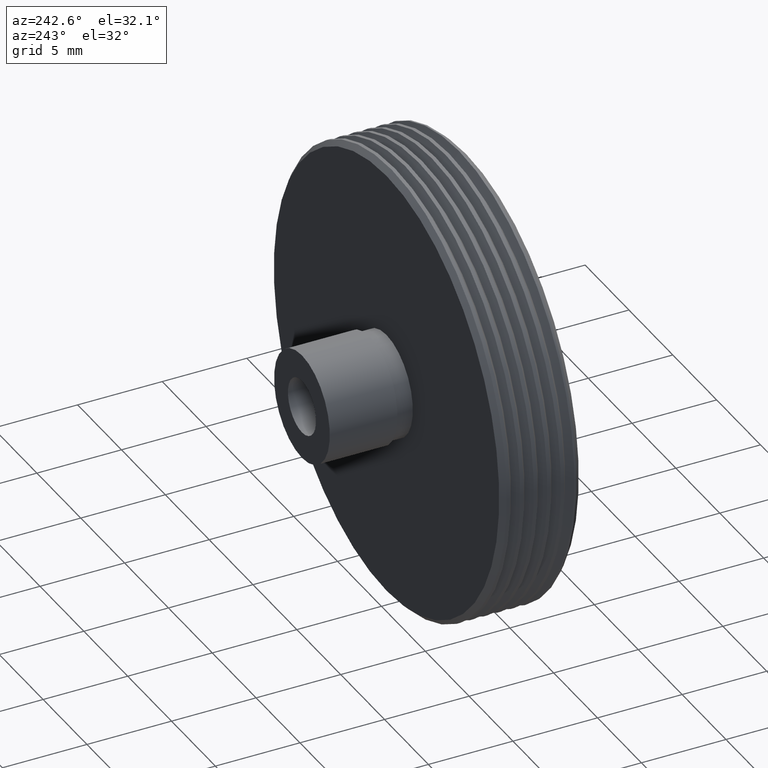
[diagram: clean part render]
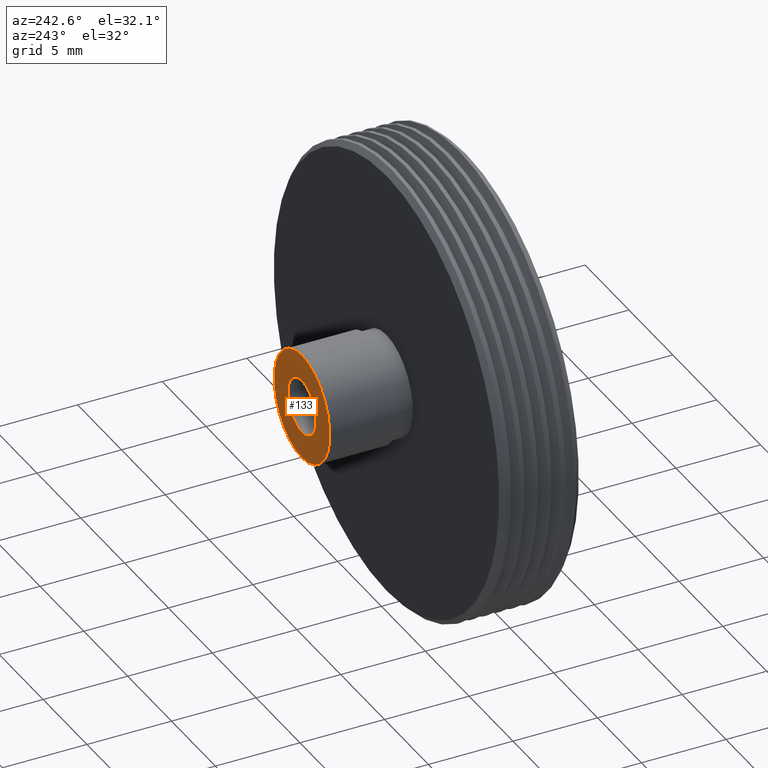
[diagram: same view with one face highlighted and labeled with its STEP entity id]
A machine part, auxiliary view. The second image highlights one B-rep face of the part: STEP entity #133.
In plain terms, the highlighted planar face has unit normal (0, -1, 0).
Its self-contained STEP definition (entity closure, byte-faithful):
#10 = VERTEX_POINT ( 'NONE', #268 ) ;
#45 = ORIENTED_EDGE ( 'NONE', *, *, #630, .T. ) ;
#83 = DIRECTION ( 'NONE',  ( 0.000000000000000000, 0.000000000000000000, -1.000000000000000000 ) ) ;
#104 = DIRECTION ( 'NONE',  ( 0.000000000000000000, 0.000000000000000000, -1.000000000000000000 ) ) ;
#124 = ORIENTED_EDGE ( 'NONE', *, *, #422, .T. ) ;
#133 = ADVANCED_FACE ( 'NONE', ( #487, #782 ), #878, .F. ) ;
#202 = DIRECTION ( 'NONE',  ( 0.000000000000000000, 0.000000000000000000, 1.000000000000000000 ) ) ;
#265 = VERTEX_POINT ( 'NONE', #1017 ) ;
#268 = CARTESIAN_POINT ( 'NONE',  ( 1.959434878635765230E-16, 9.700000000000001066, 1.600000000000000089 ) ) ;
#275 = VERTEX_POINT ( 'NONE', #600 ) ;
#305 = DIRECTION ( 'NONE',  ( 0.000000000000000000, -0.000000000000000000, -1.000000000000000000 ) ) ;
#323 = CARTESIAN_POINT ( 'NONE',  ( 0.000000000000000000, 9.700000000000001066, -1.600000000000000089 ) ) ;
#362 = DIRECTION ( 'NONE',  ( 0.000000000000000000, 0.000000000000000000, 1.000000000000000000 ) ) ;
#378 = AXIS2_PLACEMENT_3D ( 'NONE', #981, #468, #104 ) ;
#422 = EDGE_CURVE ( 'NONE', #10, #1111, #966, .T. ) ;
#460 = CARTESIAN_POINT ( 'NONE',  ( 0.000000000000000000, 9.700000000000001066, 0.000000000000000000 ) ) ;
#465 = AXIS2_PLACEMENT_3D ( 'NONE', #774, #1167, #305 ) ;
#468 = DIRECTION ( 'NONE',  ( 0.000000000000000000, -1.000000000000000000, 0.000000000000000000 ) ) ;
#475 = AXIS2_PLACEMENT_3D ( 'NONE', #1236, #646, #362 ) ;
#487 = FACE_BOUND ( 'NONE', #615, .T. ) ;
#527 = CIRCLE ( 'NONE', #1026, 3.175000000000004263 ) ;
#532 = EDGE_CURVE ( 'NONE', #1111, #10, #796, .T. ) ;
#534 = EDGE_LOOP ( 'NONE', ( #45, #748 ) ) ;
#600 = CARTESIAN_POINT ( 'NONE',  ( 3.888253587292851505E-16, 9.700000000000001066, -3.175000000000004263 ) ) ;
#615 = EDGE_LOOP ( 'NONE', ( #1001, #124 ) ) ;
#630 = EDGE_CURVE ( 'NONE', #265, #275, #527, .T. ) ;
#646 = DIRECTION ( 'NONE',  ( -0.000000000000000000, 1.000000000000000000, -0.000000000000000000 ) ) ;
#748 = ORIENTED_EDGE ( 'NONE', *, *, #825, .T. ) ;
#774 = CARTESIAN_POINT ( 'NONE',  ( 3.175000000000004263, 9.699999999999999289, 0.000000000000000000 ) ) ;
#782 = FACE_OUTER_BOUND ( 'NONE', #534, .T. ) ;
#796 = CIRCLE ( 'NONE', #378, 1.600000000000000089 ) ;
#817 = AXIS2_PLACEMENT_3D ( 'NONE', #460, #930, #83 ) ;
#825 = EDGE_CURVE ( 'NONE', #275, #265, #1250, .T. ) ;
#878 = PLANE ( 'NONE',  #465 ) ;
#884 = CARTESIAN_POINT ( 'NONE',  ( 0.000000000000000000, 9.700000000000001066, 0.000000000000000000 ) ) ;
#930 = DIRECTION ( 'NONE',  ( 0.000000000000000000, -1.000000000000000000, 0.000000000000000000 ) ) ;
#966 = CIRCLE ( 'NONE', #817, 1.600000000000000089 ) ;
#981 = CARTESIAN_POINT ( 'NONE',  ( 0.000000000000000000, 9.700000000000001066, 0.000000000000000000 ) ) ;
#1001 = ORIENTED_EDGE ( 'NONE', *, *, #532, .T. ) ;
#1017 = CARTESIAN_POINT ( 'NONE',  ( 0.000000000000000000, 9.700000000000001066, 3.175000000000004263 ) ) ;
#1026 = AXIS2_PLACEMENT_3D ( 'NONE', #884, #1070, #202 ) ;
#1070 = DIRECTION ( 'NONE',  ( -0.000000000000000000, 1.000000000000000000, -0.000000000000000000 ) ) ;
#1111 = VERTEX_POINT ( 'NONE', #323 ) ;
#1167 = DIRECTION ( 'NONE',  ( 0.000000000000000000, -1.000000000000000000, 0.000000000000000000 ) ) ;
#1236 = CARTESIAN_POINT ( 'NONE',  ( 0.000000000000000000, 9.700000000000001066, 0.000000000000000000 ) ) ;
#1250 = CIRCLE ( 'NONE', #475, 3.175000000000004263 ) ;